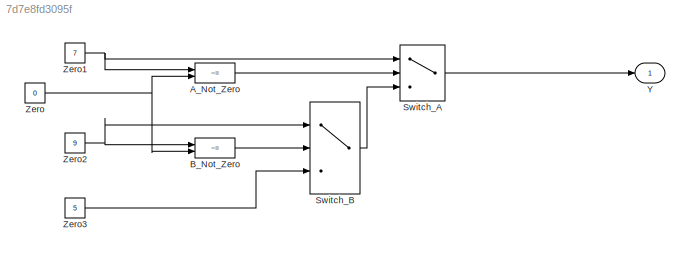
MODEL slx_7d7e8fd3095f
KIND model
CONFIG AbsTol = auto
CONFIG EnableMultiTasking = off
CONFIG FixedStep = auto
CONFIG MaxStep = auto
CONFIG MinStep = auto
CONFIG RelTol = 1e-3
CONFIG SampleTimeConstraint = Unconstrained
CONFIG SolverName = VariableStepAuto
CONFIG StartTime = 0.0
CONFIG StopTime = 10.0
BLOCK [RelationalOperator] A_Not_Zero
  InputSameDT = off
  Operator = ~=
  OutDataTypeStr = boolean
  RndMeth = Simplest
BLOCK [RelationalOperator] B_Not_Zero
  InputSameDT = off
  Operator = ~=
  OutDataTypeStr = boolean
  RndMeth = Simplest
BLOCK [Switch] Switch_A
  Criteria = u2 ~= 0
  InputSameDT = off
  SaturateOnIntegerOverflow = off
BLOCK [Switch] Switch_B
  Criteria = u2 ~= 0
  InputSameDT = off
  SaturateOnIntegerOverflow = off
BLOCK [Outport] Y
BLOCK [Constant] Zero
  Value = 0
BLOCK [Constant] Zero1
  Value = 7
BLOCK [Constant] Zero2
  Value = 9
BLOCK [Constant] Zero3
  Value = 5
LINE A_Not_Zero:1 -> Switch_A:2
LINE B_Not_Zero:1 -> Switch_B:2
LINE Switch_A:1 -> Y:1
LINE Switch_B:1 -> Switch_A:3
NET Zero1:1 -> A_Not_Zero:1, Switch_A:1
NET Zero2:1 -> B_Not_Zero:1, Switch_B:1
LINE Zero3:1 -> Switch_B:3
NET Zero:1 -> A_Not_Zero:2, B_Not_Zero:2
note: NET lines group one-source signal fan-out (src -> all destinations, sorted); 1:1 wires keep LINE
